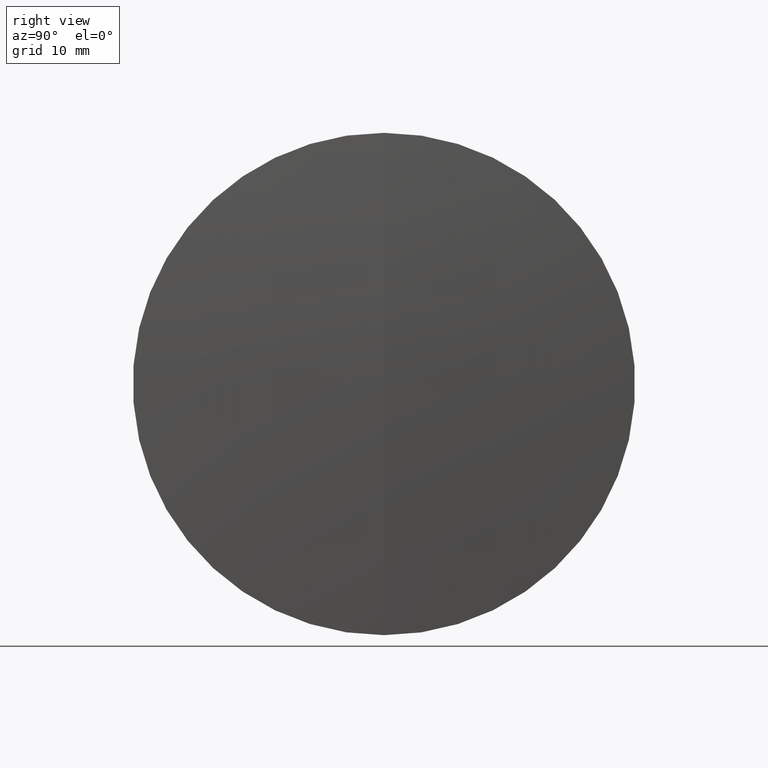
[diagram: clean part render]
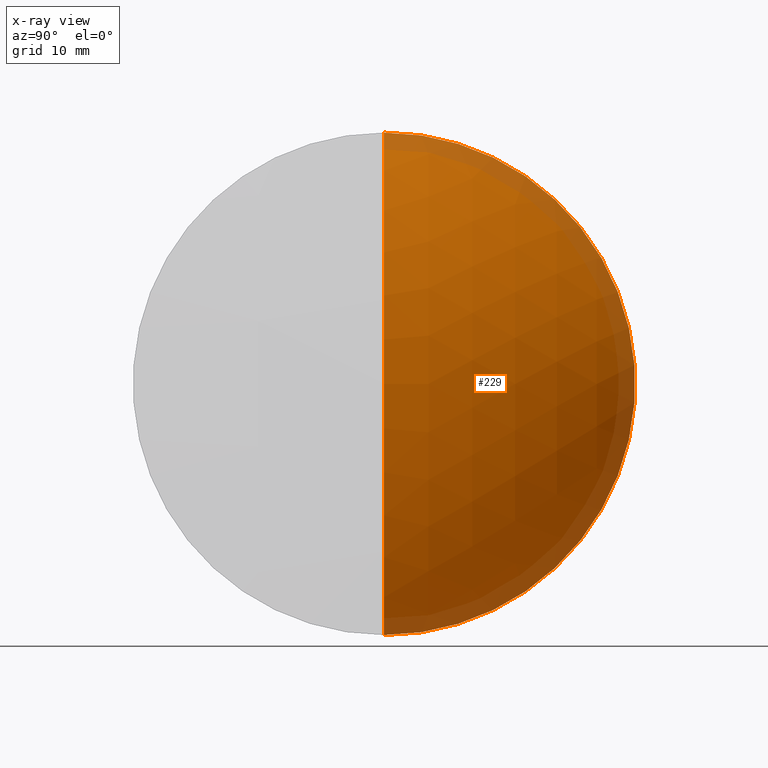
[diagram: x-ray — body ghosted, one internal face saturated and labeled with its STEP entity id]
A machine part, right view, then the same camera in x-ray: the body is ghosted and one INTERNAL B-rep face — a face not visible from any outside direction — is saturated and labeled: STEP entity #229.
In plain terms, the highlighted spherical surface has radius 44.6 mm.
Its self-contained STEP definition (entity closure, byte-faithful):
#4 = AXIS2_PLACEMENT_3D ( 'NONE', #104, #268, #236 ) ;
#17 = DIRECTION ( 'NONE',  ( 0.0000000000000000000, 0.0000000000000000000, 1.000000000000000000 ) ) ;
#19 = CARTESIAN_POINT ( 'NONE',  ( 522.8190420686033800, 0.0000000000000000000, 25.39999999999999100 ) ) ;
#20 = AXIS2_PLACEMENT_3D ( 'NONE', #163, #41, #17 ) ;
#27 = CIRCLE ( 'NONE', #135, 44.60000000000005800 ) ;
#31 = VERTEX_POINT ( 'NONE', #19 ) ;
#38 = CARTESIAN_POINT ( 'NONE',  ( 530.7584365089567200, 0.0000000000000000000, -7.206867581343383500E-015 ) ) ;
#41 = DIRECTION ( 'NONE',  ( -1.000000000000000000, -0.0000000000000000000, -0.0000000000000000000 ) ) ;
#54 = ORIENTED_EDGE ( 'NONE', *, *, #125, .F. ) ;
#64 = DIRECTION ( 'NONE',  ( 0.0000000000000000000, -1.000000000000000000, 0.0000000000000000000 ) ) ;
#91 = DIRECTION ( 'NONE',  ( -0.0000000000000000000, 1.000000000000000000, 1.224646799147353200E-016 ) ) ;
#103 = FACE_OUTER_BOUND ( 'NONE', #184, .T. ) ;
#104 = CARTESIAN_POINT ( 'NONE',  ( 486.1584365089566400, 0.0000000000000000000, -9.937829943441984000E-015 ) ) ;
#111 = CIRCLE ( 'NONE', #20, 25.39999999999999100 ) ;
#118 = ORIENTED_EDGE ( 'NONE', *, *, #166, .T. ) ;
#125 = EDGE_CURVE ( 'NONE', #204, #31, #27, .T. ) ;
#126 = SPHERICAL_SURFACE ( 'NONE', #4, 44.60000000000005800 ) ;
#130 = DIRECTION ( 'NONE',  ( 0.0000000000000000000, -1.224646799147353000E-016, 1.000000000000000000 ) ) ;
#134 = ORIENTED_EDGE ( 'NONE', *, *, #191, .F. ) ;
#135 = AXIS2_PLACEMENT_3D ( 'NONE', #181, #64, #150 ) ;
#150 = DIRECTION ( 'NONE',  ( 0.0000000000000000000, 0.0000000000000000000, -1.000000000000000000 ) ) ;
#163 = CARTESIAN_POINT ( 'NONE',  ( 522.8190420686033800, 0.0000000000000000000, 0.0000000000000000000 ) ) ;
#166 = EDGE_CURVE ( 'NONE', #204, #222, #339, .T. ) ;
#181 = CARTESIAN_POINT ( 'NONE',  ( 486.1584365089566400, 0.0000000000000000000, -9.937829943441984000E-015 ) ) ;
#184 = EDGE_LOOP ( 'NONE', ( #54, #118, #134 ) ) ;
#191 = EDGE_CURVE ( 'NONE', #31, #222, #111, .T. ) ;
#204 = VERTEX_POINT ( 'NONE', #38 ) ;
#222 = VERTEX_POINT ( 'NONE', #244 ) ;
#229 = ADVANCED_FACE ( 'NONE', ( #103 ), #126, .T. ) ;
#236 = DIRECTION ( 'NONE',  ( 0.0000000000000000000, 0.0000000000000000000, 1.000000000000000000 ) ) ;
#244 = CARTESIAN_POINT ( 'NONE',  ( 522.8190420686033800, 3.110602869834276100E-015, -25.39999999999999100 ) ) ;
#259 = AXIS2_PLACEMENT_3D ( 'NONE', #337, #91, #130 ) ;
#268 = DIRECTION ( 'NONE',  ( 0.0000000000000000000, 1.000000000000000000, 0.0000000000000000000 ) ) ;
#337 = CARTESIAN_POINT ( 'NONE',  ( 486.1584365089566400, 0.0000000000000000000, -9.937829943441984000E-015 ) ) ;
#339 = CIRCLE ( 'NONE', #259, 44.60000000000005800 ) ;